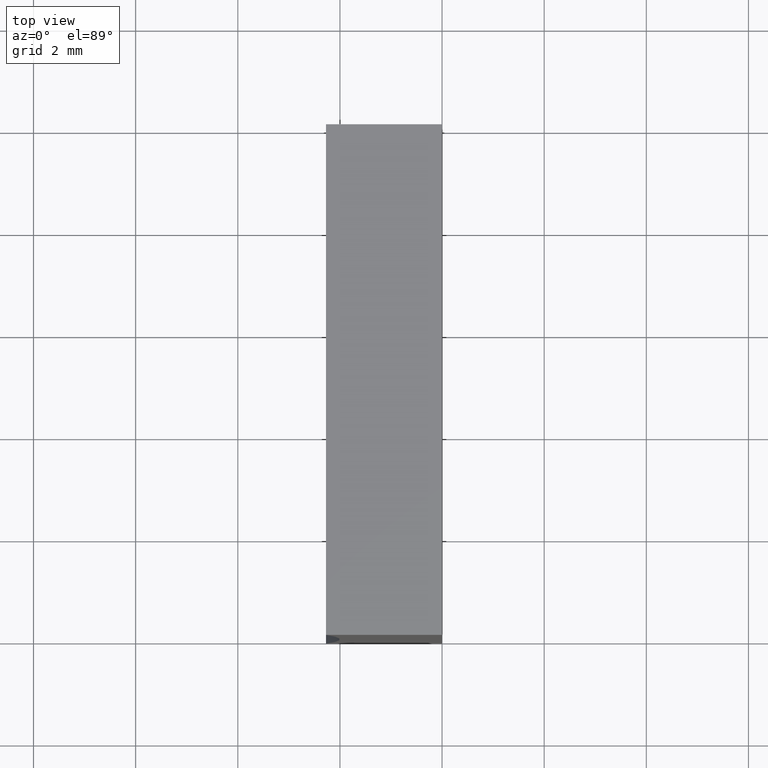
[diagram: clean part render]
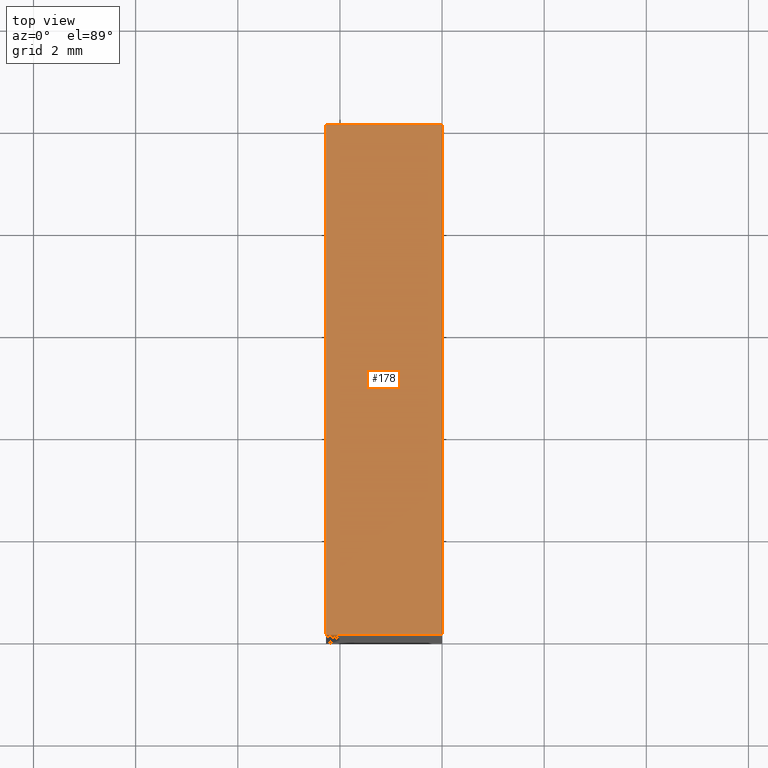
[diagram: same view with one face highlighted and labeled with its STEP entity id]
A machine part, top view. The second image highlights one B-rep face of the part: STEP entity #178.
In plain terms, the highlighted planar face has unit normal (-0, 0, -1).
Its self-contained STEP definition (entity closure, byte-faithful):
#15 = DIRECTION ( 'NONE',  ( -0.0000000000000000000, -1.000000000000000000, -0.0000000000000000000 ) ) ;
#19 = VERTEX_POINT ( 'NONE', #63 ) ;
#23 = LINE ( 'NONE', #110, #163 ) ;
#24 = ORIENTED_EDGE ( 'NONE', *, *, #188, .T. ) ;
#27 = ORIENTED_EDGE ( 'NONE', *, *, #130, .F. ) ;
#37 = EDGE_CURVE ( 'NONE', #75, #157, #23, .T. ) ;
#39 = CARTESIAN_POINT ( 'NONE',  ( -2.273443526304006900, 0.0000000000000000000, 10.00000000000000200 ) ) ;
#43 = CARTESIAN_POINT ( 'NONE',  ( 6.123233995736766300E-016, 10.00000000000000000, 10.00000000000000000 ) ) ;
#63 = CARTESIAN_POINT ( 'NONE',  ( 6.123233995736766300E-016, 0.0000000000000000000, 10.00000000000000000 ) ) ;
#67 = LINE ( 'NONE', #122, #119 ) ;
#75 = VERTEX_POINT ( 'NONE', #162 ) ;
#80 = VECTOR ( 'NONE', #15, 1000.000000000000000 ) ;
#89 = DIRECTION ( 'NONE',  ( -0.0000000000000000000, -1.000000000000000000, -0.0000000000000000000 ) ) ;
#97 = CARTESIAN_POINT ( 'NONE',  ( 6.123233995736766300E-016, 10.00000000000000000, 10.00000000000000000 ) ) ;
#104 = EDGE_LOOP ( 'NONE', ( #143, #27, #131, #24 ) ) ;
#107 = DIRECTION ( 'NONE',  ( 1.000000000000000000, -0.0000000000000000000, -7.630378568483683100E-016 ) ) ;
#109 = EDGE_CURVE ( 'NONE', #190, #19, #171, .T. ) ;
#110 = CARTESIAN_POINT ( 'NONE',  ( 6.123233995736766300E-016, 10.00000000000000000, 10.00000000000000000 ) ) ;
#119 = VECTOR ( 'NONE', #89, 1000.000000000000000 ) ;
#122 = CARTESIAN_POINT ( 'NONE',  ( -2.273443526304006900, 10.00000000000000000, 10.00000000000000200 ) ) ;
#128 = LINE ( 'NONE', #97, #80 ) ;
#129 = DIRECTION ( 'NONE',  ( 1.000000000000000000, -0.0000000000000000000, -7.630378568483683100E-016 ) ) ;
#130 = EDGE_CURVE ( 'NONE', #157, #19, #128, .T. ) ;
#131 = ORIENTED_EDGE ( 'NONE', *, *, #37, .F. ) ;
#132 = VECTOR ( 'NONE', #129, 1000.000000000000000 ) ;
#143 = ORIENTED_EDGE ( 'NONE', *, *, #109, .T. ) ;
#144 = CARTESIAN_POINT ( 'NONE',  ( 6.123233995736766300E-016, 0.0000000000000000000, 10.00000000000000000 ) ) ;
#154 = DIRECTION ( 'NONE',  ( -1.000000000000000000, 0.0000000000000000000, 7.630378568483685100E-016 ) ) ;
#156 = DIRECTION ( 'NONE',  ( -7.630378568483685100E-016, 0.0000000000000000000, -1.000000000000000000 ) ) ;
#157 = VERTEX_POINT ( 'NONE', #202 ) ;
#162 = CARTESIAN_POINT ( 'NONE',  ( -2.273443526304006900, 10.00000000000000000, 10.00000000000000200 ) ) ;
#163 = VECTOR ( 'NONE', #107, 1000.000000000000000 ) ;
#171 = LINE ( 'NONE', #144, #132 ) ;
#172 = PLANE ( 'NONE',  #177 ) ;
#177 = AXIS2_PLACEMENT_3D ( 'NONE', #43, #156, #154 ) ;
#178 = ADVANCED_FACE ( 'NONE', ( #196 ), #172, .F. ) ;
#188 = EDGE_CURVE ( 'NONE', #75, #190, #67, .T. ) ;
#190 = VERTEX_POINT ( 'NONE', #39 ) ;
#196 = FACE_OUTER_BOUND ( 'NONE', #104, .T. ) ;
#202 = CARTESIAN_POINT ( 'NONE',  ( 6.123233995736766300E-016, 10.00000000000000000, 10.00000000000000000 ) ) ;